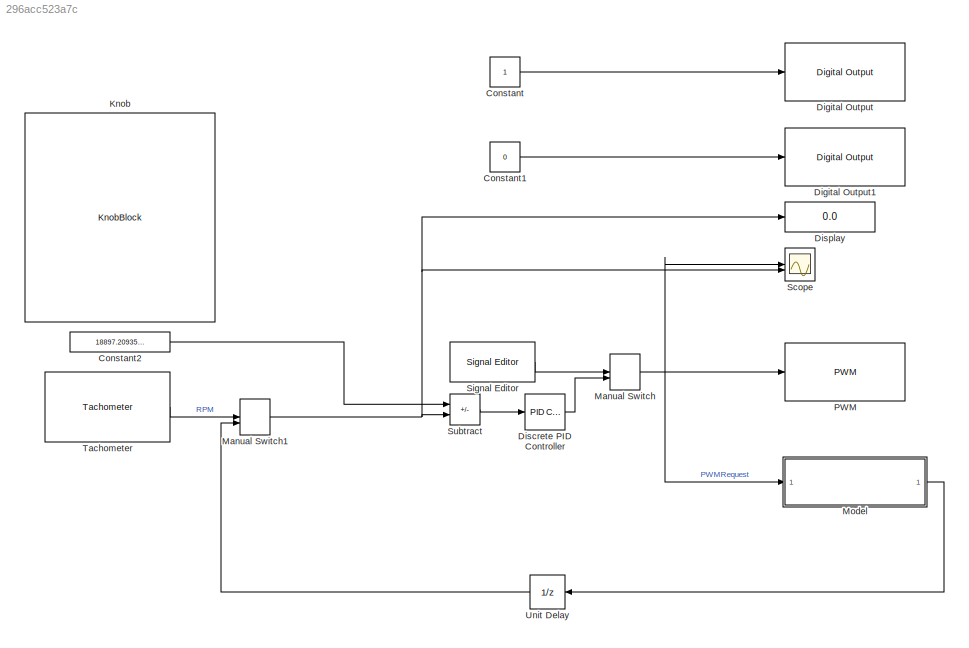
MODEL slx_296acc523a7c
KIND model
CONFIG AbsTol = auto
CONFIG EnableMultiTasking = on
CONFIG FixedStep = auto
CONFIG MaxStep = auto
CONFIG MinStep = auto
CONFIG RelTol = 1e-3
CONFIG SampleTimeConstraint = Unconstrained
CONFIG SolverName = FixedStepAuto
CONFIG StartTime = 0.0
CONFIG StopTime = inf
BLOCK [Constant] Constant
BLOCK [Constant] Constant1
  Value = 0
BLOCK [Constant] Constant2
  Value = 18897.20935902172
BLOCK [Reference] Digital Output  REF=arduinolib/Digital Output
  SourceBlock = arduinolib/Digital Output
  SourceType = Arduino Digital Output
BLOCK [Reference] Digital Output1  REF=arduinolib/Digital Output
  SourceBlock = arduinolib/Digital Output
  SourceType = Arduino Digital Output
BLOCK [Reference] Discrete PID Controller  REF=slpidlib/PID Controller
  LibrarySourceBlock = simulink/Discrete/Discrete PID Controller
  SourceBlock = slpidlib/PID Controller
  SourceType = PID 1dof
BLOCK [Display] Display
  Decimation = 1
BLOCK [KnobBlock] Knob
  ScaleMax = 19000
  ScaleMin = 14000
BLOCK [ManualSwitch] Manual Switch
  CurrentSetting = 0
BLOCK [ManualSwitch] Manual Switch1
  CurrentSetting = 0
BLOCK [ModelReference] Model
  ModelNameDialog = SysIden_Plant.slx
  ModelReferenceVersion = 1.12
BLOCK [Reference] PWM  REF=arduinolib/PWM
  SourceBlock = arduinolib/PWM
  SourceType = Arduino PWM
BLOCK [Scope] Scope
  ActiveDisplayYMaximum = 208.93861716029079
  ActiveDisplayYMinimum = -23.215401906698972
  Floating = off
  GraphicalSettings = {"Style":{"BackgroundColor":[0.12941176470588237,0.12941176470588237,0.12941176470588237],"AxesColor":[0.07058823529411765,0.07058823529411765,0.07058823529411765],"LabelsColor":[0.8509803921568627,0.8509803921568627,0.8509803921568627],"PreserveColors":false,"Visible":[true,true],"LineStyle":["-","-"],"LineWidth":[1.5,1.5],"BarWidth":[0.9,0.9],"LineColor":["auto","auto"],"LineFaceAlpha":[1,1],"Li...<+2466ch>
  LayoutDimensionsString = [2,1]
  MultipleDisplayCache = [{"MaxYLimMag":208.93861716029079,"MaxYLimReal":208.93861716029079,"MinYLimMag":0,"MinYLimReal":-23.215401906698972,"PlotAsMagnitudePhase":false,"ShowGrid":true,"ShowLegend":false,"Title":"%<SignalLabel>","YLabel":""},{"MaxYLimMag":21257.958307905476,"MaxYLimReal":21257.958307905476,"MinYLimMag":0,"MinYLimReal":-2361.9953675450524,"PlotAsMagnitudePhase":false,"ShowGrid":true,"ShowLegend":false,"Ti...<+35ch>
  NumInputPorts = 2
  ScopeFrameLocation = window
  Visible = on
  WasSavedAsWebScope = on
  WindowPosition = [547.000000,140.000000,889.000000,647.000000,]
BLOCK [Reference] Signal Editor  REF=SignalEditorBlockLib/Signal Editor
  LibrarySourceBlock = simulink/Sources/Signal Editor
  SourceBlock = SignalEditorBlockLib/Signal Editor
  SourceType = SignalEditor
  UserDataPersistent = on
BLOCK [Sum] Subtract
  IconShape = rectangular
  Inputs = +-
BLOCK [Reference] Tachometer  REF=arduinosensorlib/Tachometer
  SourceBlock = arduinosensorlib/Tachometer
  SourceType = Arduino Tachometer
BLOCK [UnitDelay] Unit Delay
  HasFrameUpgradeWarning = on
  NameLocation = top
  SampleTime = -1
LINE Constant1:1 -> Digital Output1:1
LINE Constant2:1 -> Subtract:1
LINE Constant:1 -> Digital Output:1
LINE Discrete PID Controller:1 -> Manual Switch:2
NET Manual Switch1:1 -> Display:1, Scope:2, Subtract:2
NET Manual Switch:1 -> Model:1, PWM:1, Scope:1
LINE Model:1 -> Unit Delay:1
LINE Signal Editor:1 -> Manual Switch:1
LINE Subtract:1 -> Discrete PID Controller:1
LINE Tachometer:1 -> Manual Switch1:1
LINE Unit Delay:1 -> Manual Switch1:2
note: NET lines group one-source signal fan-out (src -> all destinations, sorted); 1:1 wires keep LINE
